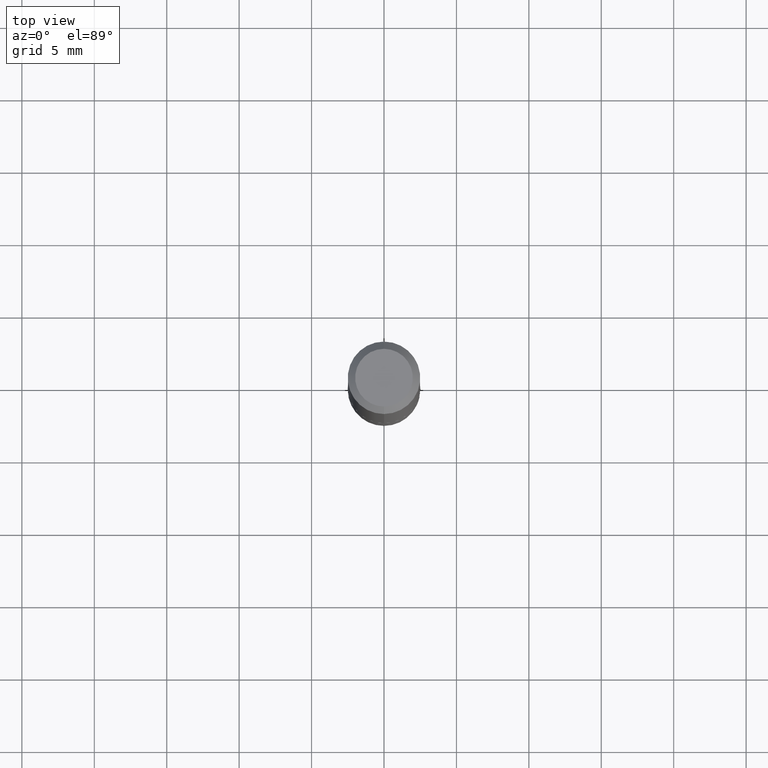
[diagram: clean part render]
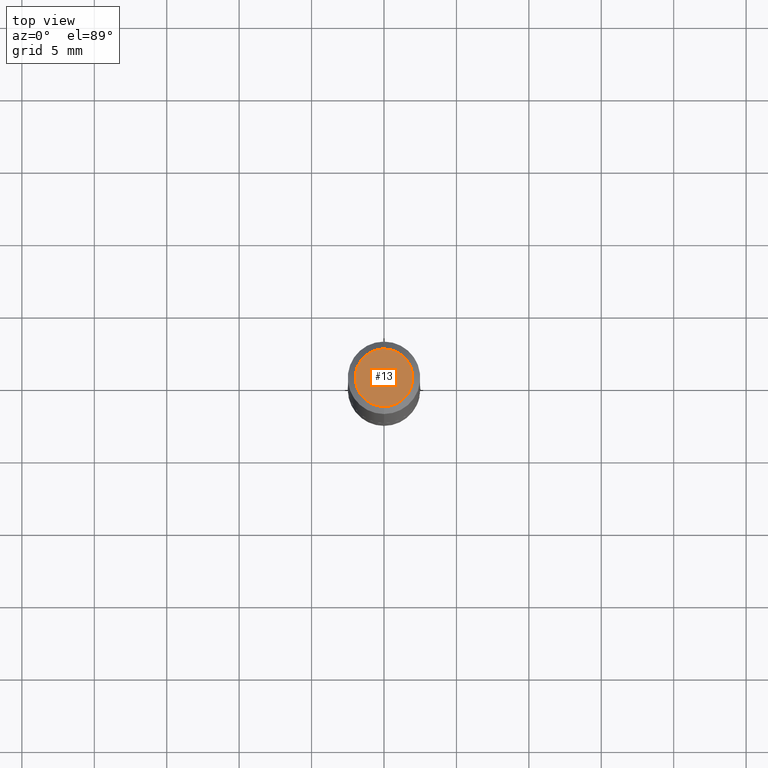
[diagram: same view with one face highlighted and labeled with its STEP entity id]
A machine part, top view. The second image highlights one B-rep face of the part: STEP entity #13.
In plain terms, the highlighted planar face has unit normal (0, -0, -1).
Its self-contained STEP definition (entity closure, byte-faithful):
#1 = EDGE_CURVE ( 'NONE', #101, #387, #208, .T. ) ;
#13 = ADVANCED_FACE ( 'NONE', ( #56 ), #405, .F. ) ;
#24 = DIRECTION ( 'NONE',  ( -2.445558673506405004E-29, 3.491352643724158830E-15, 1.000000000000000000 ) ) ;
#36 = AXIS2_PLACEMENT_3D ( 'NONE', #129, #305, #375 ) ;
#56 = FACE_OUTER_BOUND ( 'NONE', #84, .T. ) ;
#60 = EDGE_CURVE ( 'NONE', #387, #101, #253, .T. ) ;
#84 = EDGE_LOOP ( 'NONE', ( #143, #354 ) ) ;
#95 = AXIS2_PLACEMENT_3D ( 'NONE', #193, #314, #162 ) ;
#101 = VERTEX_POINT ( 'NONE', #388 ) ;
#129 = CARTESIAN_POINT ( 'NONE',  ( 5.478134220644876400E-16, 0.07845000000000000584, -2.610961254959012858E-16 ) ) ;
#143 = ORIENTED_EDGE ( 'NONE', *, *, #60, .T. ) ;
#162 = DIRECTION ( 'NONE',  ( -6.982962677686266711E-15, -1.000000000000000000, 3.491352643724158830E-15 ) ) ;
#193 = CARTESIAN_POINT ( 'NONE',  ( -6.260869577542474726E-46, 8.938204504504532174E-32, 2.560097880851795035E-17 ) ) ;
#200 = AXIS2_PLACEMENT_3D ( 'NONE', #406, #24, #334 ) ;
#208 = CIRCLE ( 'NONE', #200, 0.07845000000000000584 ) ;
#253 = CIRCLE ( 'NONE', #95, 0.07845000000000000584 ) ;
#305 = DIRECTION ( 'NONE',  ( 2.445558673506404724E-29, -3.491352643724158830E-15, -1.000000000000000000 ) ) ;
#314 = DIRECTION ( 'NONE',  ( -2.445558673506405004E-29, 3.491352643724158830E-15, 1.000000000000000000 ) ) ;
#334 = DIRECTION ( 'NONE',  ( -6.982962677686266711E-15, -1.000000000000000000, 3.491352643724158830E-15 ) ) ;
#354 = ORIENTED_EDGE ( 'NONE', *, *, #1, .T. ) ;
#375 = DIRECTION ( 'NONE',  ( 6.982962677686265922E-15, 1.000000000000000000, -3.491352643724158830E-15 ) ) ;
#387 = VERTEX_POINT ( 'NONE', #409 ) ;
#388 = CARTESIAN_POINT ( 'NONE',  ( -6.068110479028916783E-16, -0.07845000000000000584, 2.994975937086782083E-16 ) ) ;
#405 = PLANE ( 'NONE',  #36 ) ;
#406 = CARTESIAN_POINT ( 'NONE',  ( -6.260869577542474726E-46, 8.938204504504532174E-32, 2.560097880851795035E-17 ) ) ;
#409 = CARTESIAN_POINT ( 'NONE',  ( 6.176430488413504452E-16, 0.07845000000000000584, -2.482956360916422953E-16 ) ) ;